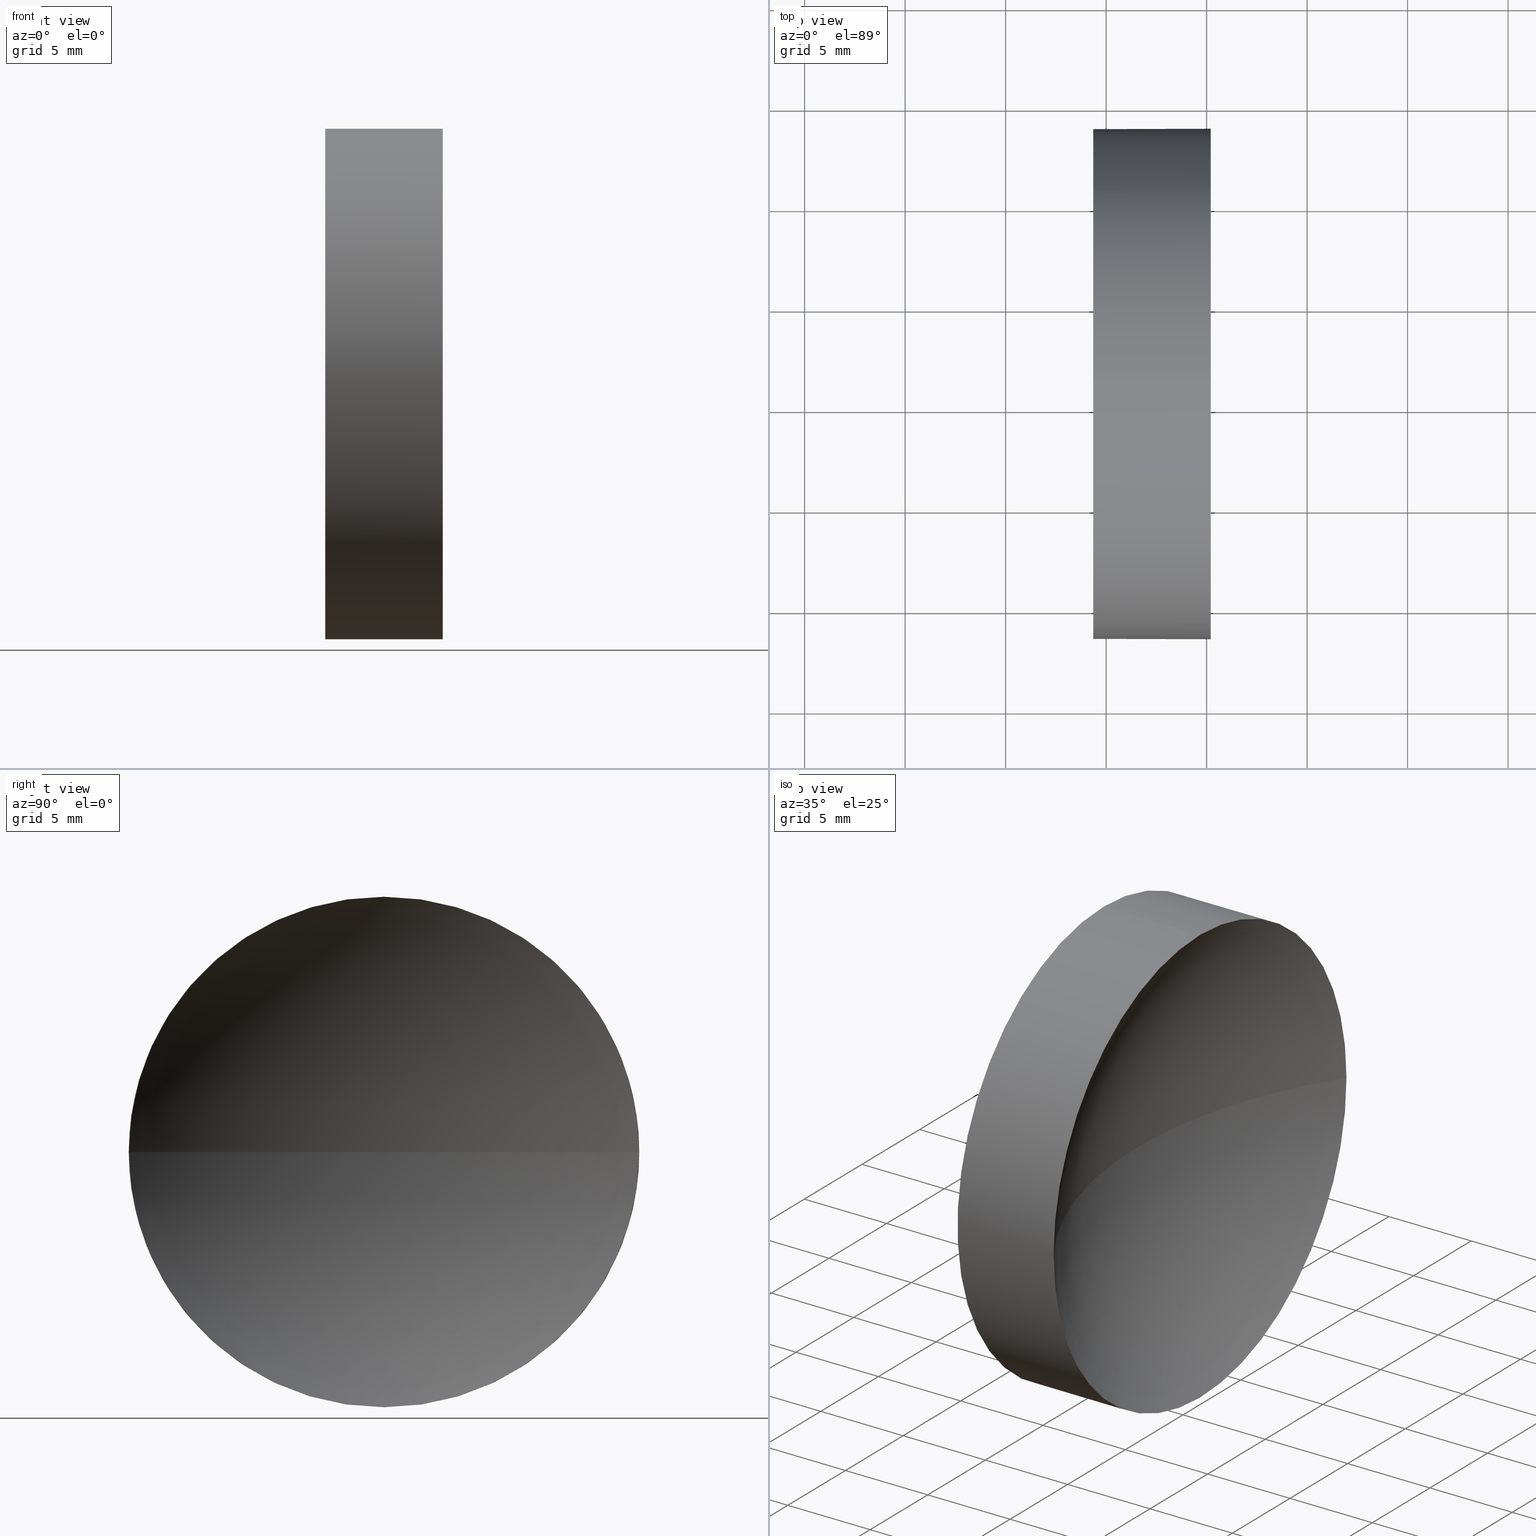
[diagram: canonical four-view strip — front | top / right | iso, engineering-drawing reading convention]
A machine part, canonical four-view strip (front | top / right | iso — engineering-drawing reading convention). The complete STEP part file that produces these views, byte-faithful:
ISO-10303-21;
HEADER;
FILE_DESCRIPTION (( 'STEP AP214' ),
    '1' );
FILE_NAME ('120265.STEP',
    '2019-06-25T03:08:13',
    ( '' ),
    ( '' ),
    'SwSTEP 2.0',
    'SolidWorks 2016',
    '' );
FILE_SCHEMA (( 'AUTOMOTIVE_DESIGN' ));
ENDSEC;

DATA;
#1 = DIRECTION ( 'NONE',  ( 0.0000000000000000000, 0.0000000000000000000, 1.000000000000000000 ) ) ;
#2 = APPLICATION_PROTOCOL_DEFINITION ( 'draft international standard', 'automotive_design', 1998, #46 ) ;
#3 = EDGE_CURVE ( 'NONE', #127, #163, #16, .T. ) ;
#4 = DIRECTION ( 'NONE',  ( 0.0000000000000000000, 0.0000000000000000000, 1.000000000000000000 ) ) ;
#5 = FACE_OUTER_BOUND ( 'NONE', #180, .T. ) ;
#6 = ORIENTED_EDGE ( 'NONE', *, *, #99, .T. ) ;
#7 = AXIS2_PLACEMENT_3D ( 'NONE', #72, #96, #41 ) ;
#8 = EDGE_CURVE ( 'NONE', #156, #27, #166, .T. ) ;
#9 = CIRCLE ( 'NONE', #170, 12.70000000000000300 ) ;
#10 = EDGE_LOOP ( 'NONE', ( #131, #113, #21, #120 ) ) ;
#11 = VECTOR ( 'NONE', #33, 1000.000000000000000 ) ;
#12 = EDGE_LOOP ( 'NONE', ( #160, #115, #31, #60 ) ) ;
#13 = DIRECTION ( 'NONE',  ( -1.000000000000000000, -0.0000000000000000000, -0.0000000000000000000 ) ) ;
#14 = AXIS2_PLACEMENT_3D ( 'NONE', #32, #13, #154 ) ;
#15 = CARTESIAN_POINT ( 'NONE',  ( 144.2829307920347300, 71.19398908659371700, 0.0000000000000000000 ) ) ;
#16 = CIRCLE ( 'NONE', #150, 22.92000000000000900 ) ;
#17 = CARTESIAN_POINT ( 'NONE',  ( 111.9552297575605700, 71.19398908659370300, 0.0000000000000000000 ) ) ;
#18 = DIRECTION ( 'NONE',  ( 0.0000000000000000000, 0.0000000000000000000, 1.000000000000000000 ) ) ;
#19 =( LENGTH_UNIT ( ) NAMED_UNIT ( * ) SI_UNIT ( .MILLI., .METRE. ) );
#20 = PRODUCT ( '120265', '120265', '', ( #110 ) ) ;
#21 = ORIENTED_EDGE ( 'NONE', *, *, #8, .F. ) ;
#22 = AXIS2_PLACEMENT_3D ( 'NONE', #23, #129, #18 ) ;
#23 = CARTESIAN_POINT ( 'NONE',  ( 119.3629307920347200, 71.19398908659370300, 0.0000000000000000000 ) ) ;
#24 = CARTESIAN_POINT ( 'NONE',  ( 125.2031928483417000, 71.19398908659370300, 0.0000000000000000000 ) ) ;
#25 = CLOSED_SHELL ( 'NONE', ( #168, #103, #58, #152, #40 ) ) ;
#26 =( GEOMETRIC_REPRESENTATION_CONTEXT ( 3 ) GLOBAL_UNCERTAINTY_ASSIGNED_CONTEXT ( ( #54 ) ) GLOBAL_UNIT_ASSIGNED_CONTEXT ( ( #19, #85, #35 ) ) REPRESENTATION_CONTEXT ( 'NONE', 'WORKASPACE' ) );
#27 = VERTEX_POINT ( 'NONE', #186 ) ;
#28 =( NAMED_UNIT ( * ) SI_UNIT ( $, .STERADIAN. ) SOLID_ANGLE_UNIT ( ) );
#29 = CARTESIAN_POINT ( 'NONE',  ( 125.2031928483417000, 83.89398908659370600, 1.555301434917137400E-015 ) ) ;
#30 = CARTESIAN_POINT ( 'NONE',  ( 125.2031928483417000, 71.19398908659370300, 0.0000000000000000000 ) ) ;
#31 = ORIENTED_EDGE ( 'NONE', *, *, #146, .F. ) ;
#32 = CARTESIAN_POINT ( 'NONE',  ( 125.2031928483417000, 71.19398908659370300, 0.0000000000000000000 ) ) ;
#33 = DIRECTION ( 'NONE',  ( -1.000000000000000000, -0.0000000000000000000, -0.0000000000000000000 ) ) ;
#34 = CARTESIAN_POINT ( 'NONE',  ( 125.2031928483417000, 71.19398908659370300, -12.70000000000000300 ) ) ;
#35 =( NAMED_UNIT ( * ) SI_UNIT ( $, .STERADIAN. ) SOLID_ANGLE_UNIT ( ) );
#36 = ADVANCED_BREP_SHAPE_REPRESENTATION ( '120265', ( #79, #69 ), #26 ) ;
#37 = COLOUR_RGB ( '',1.000000000000000000, 1.000000000000000000, 1.000000000000000000 ) ;
#38 = EDGE_CURVE ( 'NONE', #172, #50, #132, .T. ) ;
#39 = SPHERICAL_SURFACE ( 'NONE', #81, 22.92000000000000500 ) ;
#40 = ADVANCED_FACE ( 'NONE', ( #123 ), #185, .F. ) ;
#41 = DIRECTION ( 'NONE',  ( 0.0000000000000000000, 0.0000000000000000000, -1.000000000000000000 ) ) ;
#42 = CIRCLE ( 'NONE', #116, 22.92000000000000900 ) ;
#43 =( LENGTH_UNIT ( ) NAMED_UNIT ( * ) SI_UNIT ( .MILLI., .METRE. ) );
#44 = ORIENTED_EDGE ( 'NONE', *, *, #8, .T. ) ;
#45 = DIRECTION ( 'NONE',  ( 0.0000000000000000000, 0.0000000000000000000, 1.000000000000000000 ) ) ;
#46 = APPLICATION_CONTEXT ( 'automotive_design' ) ;
#47 = AXIS2_PLACEMENT_3D ( 'NONE', #30, #171, #121 ) ;
#48 = DIRECTION ( 'NONE',  ( -1.000000000000000000, -0.0000000000000000000, -0.0000000000000000000 ) ) ;
#49 = CYLINDRICAL_SURFACE ( 'NONE', #161, 12.70000000000000300 ) ;
#50 = VERTEX_POINT ( 'NONE', #153 ) ;
#51 = PRODUCT_DEFINITION ( 'δ֪', '', #78, #167 ) ;
#52 = EDGE_LOOP ( 'NONE', ( #134, #53, #84, #67, #122 ) ) ;
#53 = ORIENTED_EDGE ( 'NONE', *, *, #38, .T. ) ;
#54 = UNCERTAINTY_MEASURE_WITH_UNIT (LENGTH_MEASURE( 1.000000000000000100E-005 ), #19, 'distance_accuracy_value', 'NONE');
#55 = STYLED_ITEM ( 'NONE', ( #61 ), #79 ) ;
#56 = SURFACE_STYLE_USAGE ( .BOTH. , #105 ) ;
#57 = DIRECTION ( 'NONE',  ( -1.000000000000000000, -0.0000000000000000000, -0.0000000000000000000 ) ) ;
#58 = ADVANCED_FACE ( 'NONE', ( #157 ), #89, .F. ) ;
#59 = DIRECTION ( 'NONE',  ( 0.0000000000000000000, -1.000000000000000000, 0.0000000000000000000 ) ) ;
#60 = ORIENTED_EDGE ( 'NONE', *, *, #140, .F. ) ;
#61 = PRESENTATION_STYLE_ASSIGNMENT (( #56 ) ) ;
#62 = DIRECTION ( 'NONE',  ( -1.000000000000000000, -0.0000000000000000000, -0.0000000000000000000 ) ) ;
#63 = DIRECTION ( 'NONE',  ( 0.0000000000000000000, -1.000000000000000000, 0.0000000000000000000 ) ) ;
#64 = SURFACE_STYLE_USAGE ( .BOTH. , #145 ) ;
#65 = ORIENTED_EDGE ( 'NONE', *, *, #183, .F. ) ;
#66 = UNCERTAINTY_MEASURE_WITH_UNIT (LENGTH_MEASURE( 1.000000000000000100E-005 ), #43, 'distance_accuracy_value', 'NONE');
#67 = ORIENTED_EDGE ( 'NONE', *, *, #99, .F. ) ;
#68 = PRESENTATION_LAYER_ASSIGNMENT (  '', '', ( #55 ) ) ;
#69 = AXIS2_PLACEMENT_3D ( 'NONE', #86, #1, #75 ) ;
#70 = DIRECTION ( 'NONE',  ( 0.0000000000000000000, 0.0000000000000000000, 1.000000000000000000 ) ) ;
#71 = CARTESIAN_POINT ( 'NONE',  ( 111.9552297575605700, 71.19398908659370300, -12.70000000000000300 ) ) ;
#72 = CARTESIAN_POINT ( 'NONE',  ( 119.3629307920347200, 71.19398908659370300, 0.0000000000000000000 ) ) ;
#73 = CARTESIAN_POINT ( 'NONE',  ( 125.2031928483417000, 71.19398908659370300, 0.0000000000000000000 ) ) ;
#74 = DIRECTION ( 'NONE',  ( -1.000000000000000000, 0.0000000000000000000, 0.0000000000000000000 ) ) ;
#75 = DIRECTION ( 'NONE',  ( 1.000000000000000000, 0.0000000000000000000, 0.0000000000000000000 ) ) ;
#76 = EDGE_CURVE ( 'NONE', #127, #172, #118, .T. ) ;
#77 = CIRCLE ( 'NONE', #104, 12.70000000000000300 ) ;
#78 = PRODUCT_DEFINITION_FORMATION_WITH_SPECIFIED_SOURCE ( '�κ�', '', #20, .NOT_KNOWN. ) ;
#79 = MANIFOLD_SOLID_BREP ( '��ת1', #25 ) ;
#80 = VECTOR ( 'NONE', #62, 1000.000000000000000 ) ;
#81 = AXIS2_PLACEMENT_3D ( 'NONE', #151, #124, #63 ) ;
#82 = CIRCLE ( 'NONE', #149, 12.70000000000000300 ) ;
#83 = DIRECTION ( 'NONE',  ( -1.000000000000000000, -0.0000000000000000000, -0.0000000000000000000 ) ) ;
#84 = ORIENTED_EDGE ( 'NONE', *, *, #181, .F. ) ;
#85 =( NAMED_UNIT ( * ) PLANE_ANGLE_UNIT ( ) SI_UNIT ( $, .RADIAN. ) );
#86 = CARTESIAN_POINT ( 'NONE',  ( 0.0000000000000000000, 0.0000000000000000000, 0.0000000000000000000 ) ) ;
#87 = EDGE_LOOP ( 'NONE', ( #90, #93 ) ) ;
#88 = CIRCLE ( 'NONE', #22, 12.70000000000000300 ) ;
#89 = SPHERICAL_SURFACE ( 'NONE', #130, 22.92000000000000500 ) ;
#90 = ORIENTED_EDGE ( 'NONE', *, *, #181, .T. ) ;
#91 = MECHANICAL_DESIGN_GEOMETRIC_PRESENTATION_REPRESENTATION (  '', ( #55 ), #108 ) ;
#92 = SURFACE_STYLE_FILL_AREA ( #139 ) ;
#93 = ORIENTED_EDGE ( 'NONE', *, *, #183, .T. ) ;
#94 = DIRECTION ( 'NONE',  ( 0.0000000000000000000, 0.0000000000000000000, 1.000000000000000000 ) ) ;
#95 = CARTESIAN_POINT ( 'NONE',  ( 144.2829307920347300, 71.19398908659371700, 0.0000000000000000000 ) ) ;
#96 = DIRECTION ( 'NONE',  ( 1.000000000000000000, 0.0000000000000000000, 0.0000000000000000000 ) ) ;
#97 = APPLICATION_CONTEXT ( 'automotive_design' ) ;
#98 = CARTESIAN_POINT ( 'NONE',  ( 144.2829307920347300, 71.19398908659371700, 0.0000000000000000000 ) ) ;
#99 = EDGE_CURVE ( 'NONE', #27, #164, #162, .T. ) ;
#100 = STYLED_ITEM ( 'NONE', ( #148 ), #36 ) ;
#101 = SURFACE_STYLE_FILL_AREA ( #144 ) ;
#102 = FILL_AREA_STYLE_COLOUR ( '', #165 ) ;
#103 = ADVANCED_FACE ( 'NONE', ( #112 ), #39, .F. ) ;
#104 = AXIS2_PLACEMENT_3D ( 'NONE', #73, #57, #70 ) ;
#105 = SURFACE_SIDE_STYLE ('',( #92 ) ) ;
#106 = FILL_AREA_STYLE_COLOUR ( '', #37 ) ;
#107 = DIRECTION ( 'NONE',  ( 0.0000000000000000000, 0.0000000000000000000, 1.000000000000000000 ) ) ;
#108 =( GEOMETRIC_REPRESENTATION_CONTEXT ( 3 ) GLOBAL_UNCERTAINTY_ASSIGNED_CONTEXT ( ( #66 ) ) GLOBAL_UNIT_ASSIGNED_CONTEXT ( ( #43, #142, #28 ) ) REPRESENTATION_CONTEXT ( 'NONE', 'WORKASPACE' ) );
#109 = DIRECTION ( 'NONE',  ( -1.000000000000000000, -0.0000000000000000000, -0.0000000000000000000 ) ) ;
#110 = PRODUCT_CONTEXT ( 'NONE', #46, 'mechanical' ) ;
#111 = CARTESIAN_POINT ( 'NONE',  ( 121.3629307920347300, 71.19398908659371700, 0.0000000000000000000 ) ) ;
#112 = FACE_OUTER_BOUND ( 'NONE', #12, .T. ) ;
#113 = ORIENTED_EDGE ( 'NONE', *, *, #178, .F. ) ;
#114 = SHAPE_DEFINITION_REPRESENTATION ( #136, #36 ) ;
#115 = ORIENTED_EDGE ( 'NONE', *, *, #3, .T. ) ;
#116 = AXIS2_PLACEMENT_3D ( 'NONE', #98, #125, #74 ) ;
#117 = FACE_OUTER_BOUND ( 'NONE', #52, .T. ) ;
#118 = CIRCLE ( 'NONE', #14, 12.70000000000000300 ) ;
#119 = AXIS2_PLACEMENT_3D ( 'NONE', #17, #109, #4 ) ;
#120 = ORIENTED_EDGE ( 'NONE', *, *, #146, .T. ) ;
#121 = DIRECTION ( 'NONE',  ( 0.0000000000000000000, 0.0000000000000000000, 1.000000000000000000 ) ) ;
#122 = ORIENTED_EDGE ( 'NONE', *, *, #178, .T. ) ;
#123 = FACE_OUTER_BOUND ( 'NONE', #87, .T. ) ;
#124 = DIRECTION ( 'NONE',  ( 0.0000000000000000000, 0.0000000000000000000, 1.000000000000000000 ) ) ;
#125 = DIRECTION ( 'NONE',  ( 0.0000000000000000000, 0.0000000000000000000, -1.000000000000000000 ) ) ;
#126 = CARTESIAN_POINT ( 'NONE',  ( 119.3629307920347200, 71.19398908659370300, 12.70000000000000300 ) ) ;
#127 = VERTEX_POINT ( 'NONE', #29 ) ;
#128 = CARTESIAN_POINT ( 'NONE',  ( 119.3629307920347200, 71.19398908659370300, 0.0000000000000000000 ) ) ;
#129 = DIRECTION ( 'NONE',  ( -1.000000000000000000, -0.0000000000000000000, -0.0000000000000000000 ) ) ;
#130 = AXIS2_PLACEMENT_3D ( 'NONE', #15, #141, #59 ) ;
#131 = ORIENTED_EDGE ( 'NONE', *, *, #3, .F. ) ;
#132 = LINE ( 'NONE', #71, #11 ) ;
#133 = PRODUCT_RELATED_PRODUCT_CATEGORY ( 'part', '', ( #20 ) ) ;
#134 = ORIENTED_EDGE ( 'NONE', *, *, #76, .T. ) ;
#135 = PRESENTATION_LAYER_ASSIGNMENT (  '', '', ( #100 ) ) ;
#136 = PRODUCT_DEFINITION_SHAPE ( 'NONE', 'NONE',  #51 ) ;
#137 = ORIENTED_EDGE ( 'NONE', *, *, #38, .F. ) ;
#138 = MECHANICAL_DESIGN_GEOMETRIC_PRESENTATION_REPRESENTATION (  '', ( #100 ), #177 ) ;
#139 = FILL_AREA_STYLE ('',( #102 ) ) ;
#140 = EDGE_CURVE ( 'NONE', #172, #156, #77, .T. ) ;
#141 = DIRECTION ( 'NONE',  ( 0.0000000000000000000, 0.0000000000000000000, 1.000000000000000000 ) ) ;
#142 =( NAMED_UNIT ( * ) PLANE_ANGLE_UNIT ( ) SI_UNIT ( $, .RADIAN. ) );
#143 = DIRECTION ( 'NONE',  ( 0.0000000000000000000, -1.000000000000000000, -1.224646799147353000E-016 ) ) ;
#144 = FILL_AREA_STYLE ('',( #106 ) ) ;
#145 = SURFACE_SIDE_STYLE ('',( #101 ) ) ;
#146 = EDGE_CURVE ( 'NONE', #156, #163, #42, .T. ) ;
#147 = APPLICATION_PROTOCOL_DEFINITION ( 'draft international standard', 'automotive_design', 1998, #97 ) ;
#148 = PRESENTATION_STYLE_ASSIGNMENT (( #64 ) ) ;
#149 = AXIS2_PLACEMENT_3D ( 'NONE', #24, #48, #107 ) ;
#150 = AXIS2_PLACEMENT_3D ( 'NONE', #95, #173, #143 ) ;
#151 = CARTESIAN_POINT ( 'NONE',  ( 144.2829307920347300, 71.19398908659371700, 0.0000000000000000000 ) ) ;
#152 = ADVANCED_FACE ( 'NONE', ( #5 ), #49, .T. ) ;
#153 = CARTESIAN_POINT ( 'NONE',  ( 119.3629307920347200, 71.19398908659370300, -12.70000000000000300 ) ) ;
#154 = DIRECTION ( 'NONE',  ( 0.0000000000000000000, 0.0000000000000000000, 1.000000000000000000 ) ) ;
#155 = CYLINDRICAL_SURFACE ( 'NONE', #119, 12.70000000000000300 ) ;
#156 = VERTEX_POINT ( 'NONE', #176 ) ;
#157 = FACE_OUTER_BOUND ( 'NONE', #10, .T. ) ;
#158 =( LENGTH_UNIT ( ) NAMED_UNIT ( * ) SI_UNIT ( .MILLI., .METRE. ) );
#159 =( NAMED_UNIT ( * ) PLANE_ANGLE_UNIT ( ) SI_UNIT ( $, .RADIAN. ) );
#160 = ORIENTED_EDGE ( 'NONE', *, *, #76, .F. ) ;
#161 = AXIS2_PLACEMENT_3D ( 'NONE', #184, #83, #94 ) ;
#162 = LINE ( 'NONE', #169, #80 ) ;
#163 = VERTEX_POINT ( 'NONE', #111 ) ;
#164 = VERTEX_POINT ( 'NONE', #126 ) ;
#165 = COLOUR_RGB ( '',1.000000000000000000, 1.000000000000000000, 1.000000000000000000 ) ;
#166 = CIRCLE ( 'NONE', #47, 12.70000000000000300 ) ;
#167 = PRODUCT_DEFINITION_CONTEXT ( 'detailed design', #97, 'design' ) ;
#168 = ADVANCED_FACE ( 'NONE', ( #117 ), #155, .T. ) ;
#169 = CARTESIAN_POINT ( 'NONE',  ( 111.9552297575605700, 71.19398908659370300, 12.70000000000000300 ) ) ;
#170 = AXIS2_PLACEMENT_3D ( 'NONE', #128, #174, #45 ) ;
#171 = DIRECTION ( 'NONE',  ( -1.000000000000000000, -0.0000000000000000000, -0.0000000000000000000 ) ) ;
#172 = VERTEX_POINT ( 'NONE', #34 ) ;
#173 = DIRECTION ( 'NONE',  ( 0.0000000000000000000, -1.224646799147353200E-016, 1.000000000000000000 ) ) ;
#174 = DIRECTION ( 'NONE',  ( -1.000000000000000000, -0.0000000000000000000, -0.0000000000000000000 ) ) ;
#175 = ORIENTED_EDGE ( 'NONE', *, *, #140, .T. ) ;
#176 = CARTESIAN_POINT ( 'NONE',  ( 125.2031928483417000, 58.49398908659371400, 0.0000000000000000000 ) ) ;
#177 =( GEOMETRIC_REPRESENTATION_CONTEXT ( 3 ) GLOBAL_UNCERTAINTY_ASSIGNED_CONTEXT ( ( #182 ) ) GLOBAL_UNIT_ASSIGNED_CONTEXT ( ( #158, #159, #179 ) ) REPRESENTATION_CONTEXT ( 'NONE', 'WORKASPACE' ) );
#178 = EDGE_CURVE ( 'NONE', #27, #127, #82, .T. ) ;
#179 =( NAMED_UNIT ( * ) SI_UNIT ( $, .STERADIAN. ) SOLID_ANGLE_UNIT ( ) );
#180 = EDGE_LOOP ( 'NONE', ( #137, #175, #44, #6, #65 ) ) ;
#181 = EDGE_CURVE ( 'NONE', #164, #50, #9, .T. ) ;
#182 = UNCERTAINTY_MEASURE_WITH_UNIT (LENGTH_MEASURE( 1.000000000000000100E-005 ), #158, 'distance_accuracy_value', 'NONE');
#183 = EDGE_CURVE ( 'NONE', #50, #164, #88, .T. ) ;
#184 = CARTESIAN_POINT ( 'NONE',  ( 111.9552297575605700, 71.19398908659370300, 0.0000000000000000000 ) ) ;
#185 = PLANE ( 'NONE',  #7 ) ;
#186 = CARTESIAN_POINT ( 'NONE',  ( 125.2031928483417000, 71.19398908659370300, 12.70000000000000300 ) ) ;
ENDSEC;
END-ISO-10303-21;
